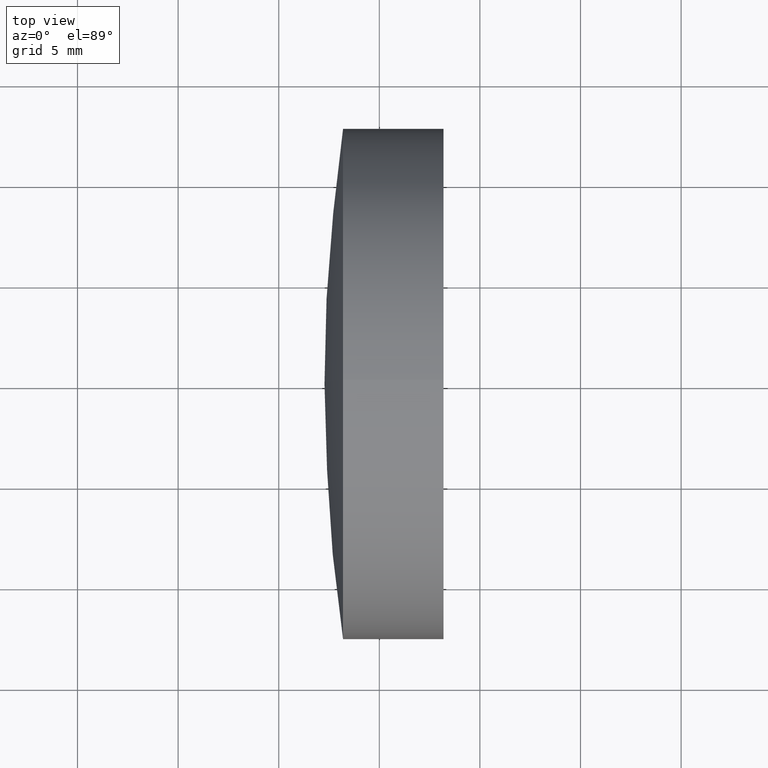
[diagram: clean part render]
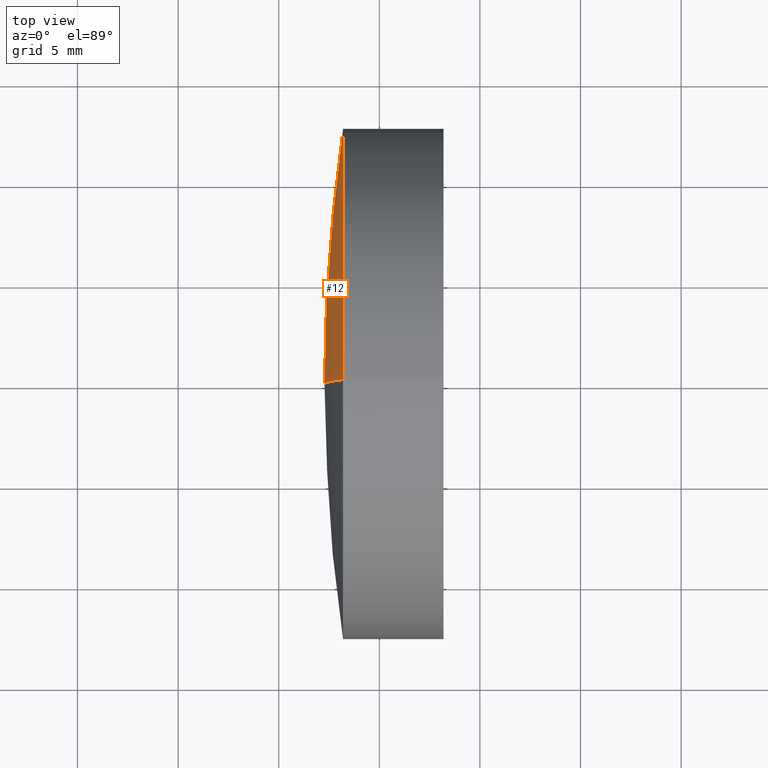
[diagram: same view with one face highlighted and labeled with its STEP entity id]
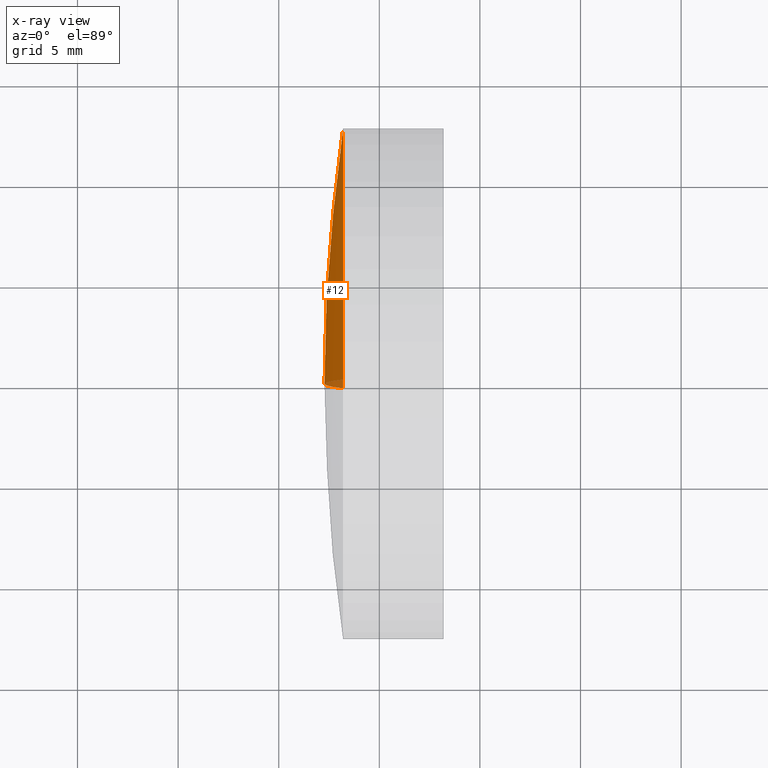
[diagram: x-ray of the same camera — body ghosted, the highlighted face saturated]
A machine part, top view. The second image highlights one B-rep face of the part: STEP entity #12.
The next image is the same camera in x-ray: the body ghosted, the highlighted face saturated — about 3% of this face is hidden behind the body in this view.
In plain terms, the highlighted spherical surface has radius 87.9 mm.
Its self-contained STEP definition (entity closure, byte-faithful):
#12 = ADVANCED_FACE ( 'NONE', ( #193 ), #110, .T. ) ;
#20 = CIRCLE ( 'NONE', #60, 87.90000000000000600 ) ;
#56 = EDGE_CURVE ( 'NONE', #347, #135, #78, .T. ) ;
#60 = AXIS2_PLACEMENT_3D ( 'NONE', #292, #129, #314 ) ;
#61 = DIRECTION ( 'NONE',  ( 0.0000000000000000000, 0.0000000000000000000, 1.000000000000000000 ) ) ;
#64 = ORIENTED_EDGE ( 'NONE', *, *, #241, .T. ) ;
#68 = AXIS2_PLACEMENT_3D ( 'NONE', #283, #116, #284 ) ;
#78 = CIRCLE ( 'NONE', #265, 12.70000000000001700 ) ;
#85 = DIRECTION ( 'NONE',  ( -1.000000000000000000, -0.0000000000000000000, -0.0000000000000000000 ) ) ;
#110 = SPHERICAL_SURFACE ( 'NONE', #294, 87.90000000000000600 ) ;
#116 = DIRECTION ( 'NONE',  ( 0.0000000000000000000, -1.000000000000000000, -1.224646799147353200E-016 ) ) ;
#121 = DIRECTION ( 'NONE',  ( 0.0000000000000000000, 0.0000000000000000000, -1.000000000000000000 ) ) ;
#129 = DIRECTION ( 'NONE',  ( 0.0000000000000000000, 1.000000000000000000, -0.0000000000000000000 ) ) ;
#135 = VERTEX_POINT ( 'NONE', #307 ) ;
#164 = ORIENTED_EDGE ( 'NONE', *, *, #56, .T. ) ;
#165 = EDGE_CURVE ( 'NONE', #347, #263, #313, .T. ) ;
#193 = FACE_OUTER_BOUND ( 'NONE', #247, .T. ) ;
#234 = CARTESIAN_POINT ( 'NONE',  ( 92.27538326155490700, 0.0000000000000000000, 5.893984465210199900E-014 ) ) ;
#241 = EDGE_CURVE ( 'NONE', #135, #263, #20, .T. ) ;
#247 = EDGE_LOOP ( 'NONE', ( #290, #164, #64 ) ) ;
#248 = CARTESIAN_POINT ( 'NONE',  ( 93.19768497055619600, 0.0000000000000000000, 0.0000000000000000000 ) ) ;
#261 = CARTESIAN_POINT ( 'NONE',  ( 180.1753832615549100, 0.0000000000000000000, 6.432216733435462300E-014 ) ) ;
#263 = VERTEX_POINT ( 'NONE', #234 ) ;
#265 = AXIS2_PLACEMENT_3D ( 'NONE', #248, #85, #61 ) ;
#283 = CARTESIAN_POINT ( 'NONE',  ( 180.1753832615549100, 0.0000000000000000000, 6.432216733435462300E-014 ) ) ;
#284 = DIRECTION ( 'NONE',  ( 0.0000000000000000000, 1.224646799147353200E-016, -1.000000000000000000 ) ) ;
#290 = ORIENTED_EDGE ( 'NONE', *, *, #165, .F. ) ;
#292 = CARTESIAN_POINT ( 'NONE',  ( 180.1753832615549100, 0.0000000000000000000, 6.432216733435462300E-014 ) ) ;
#294 = AXIS2_PLACEMENT_3D ( 'NONE', #261, #334, #121 ) ;
#307 = CARTESIAN_POINT ( 'NONE',  ( 93.19768497055619600, 0.0000000000000000000, -12.69999999999996900 ) ) ;
#313 = CIRCLE ( 'NONE', #68, 87.90000000000000600 ) ;
#314 = DIRECTION ( 'NONE',  ( 0.0000000000000000000, 0.0000000000000000000, 1.000000000000000000 ) ) ;
#334 = DIRECTION ( 'NONE',  ( -0.0000000000000000000, -1.000000000000000000, -0.0000000000000000000 ) ) ;
#344 = CARTESIAN_POINT ( 'NONE',  ( 93.19768497055619600, -1.555301434917134900E-015, 12.70000000000003500 ) ) ;
#347 = VERTEX_POINT ( 'NONE', #344 ) ;